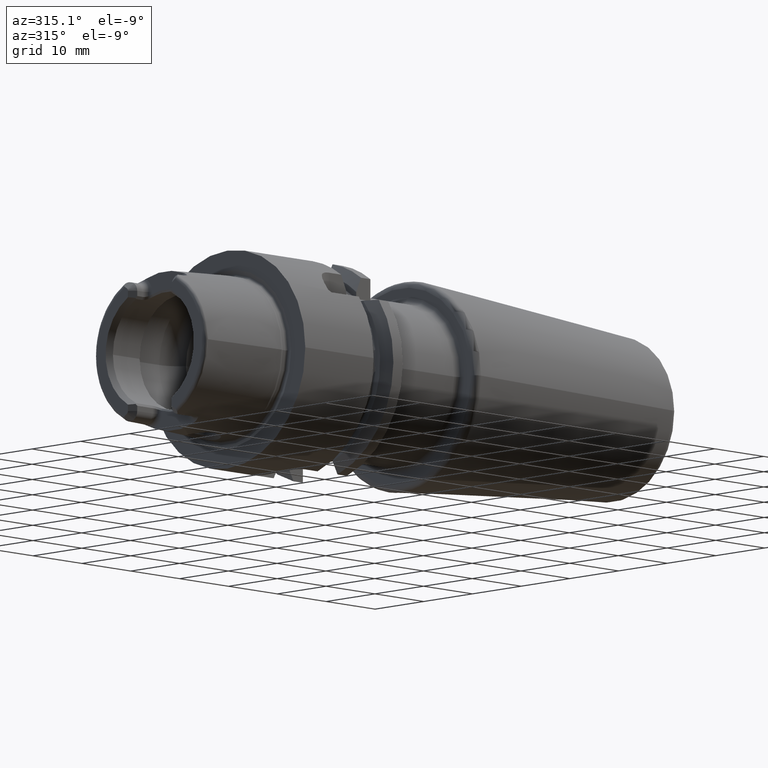
[diagram: clean part render]
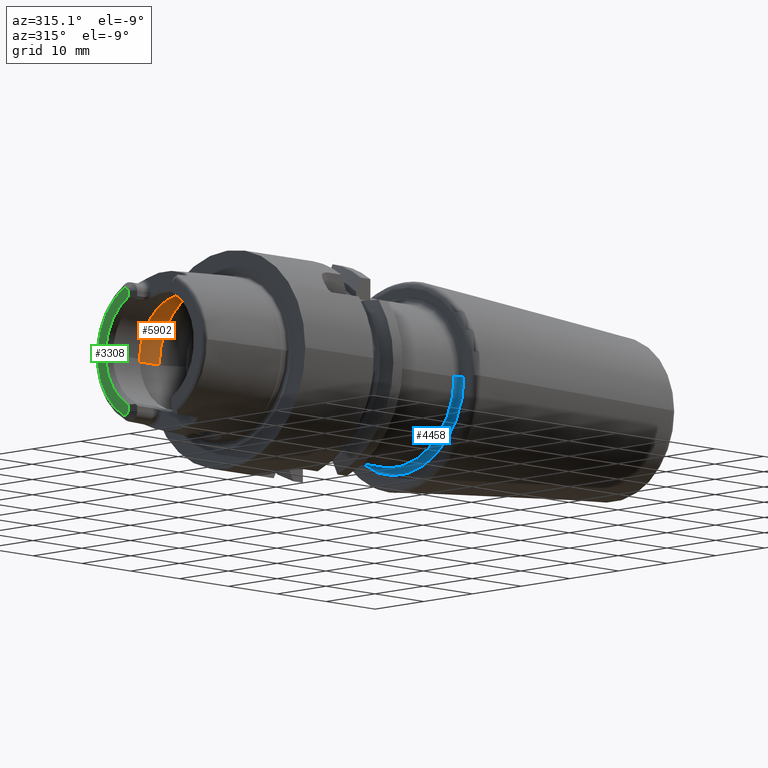
[diagram: same view with three faces highlighted in distinct colors, each labeled with its STEP entity id]
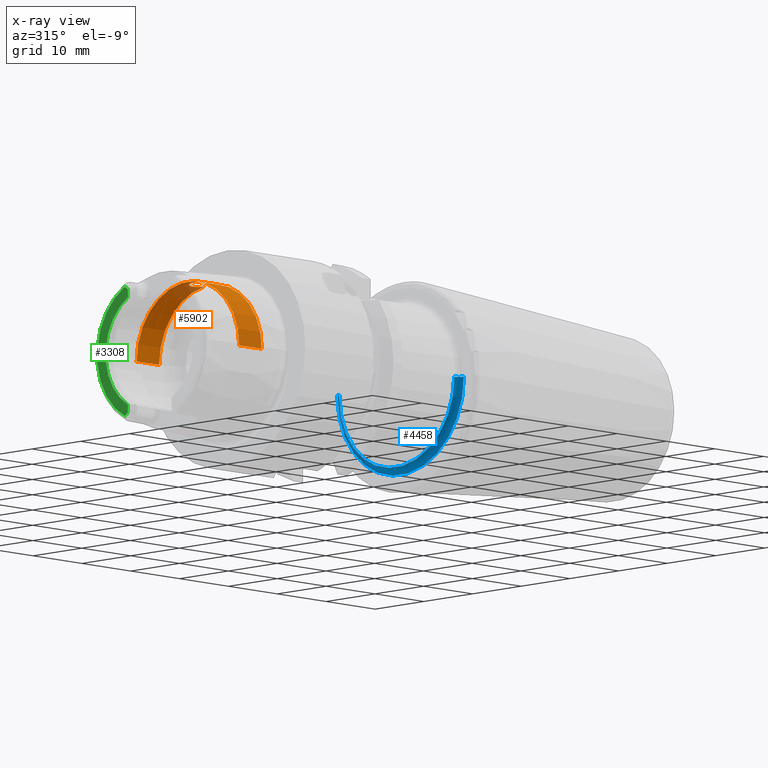
[diagram: x-ray of the same camera — body ghosted, the three highlighted faces saturated]
A machine part, auxiliary view with three faces highlighted in distinct colors.
The next image is the same camera in x-ray (body ghosted, the three faces saturated) — at least one of them is partly hidden behind the body in this view.
Their STEP definitions:

[orange] entity #5902 — the highlighted cylindrical surface (partial cylindrical patch) has radius 10.5325 mm, axis along (1, 0, 0).
#2120=CARTESIAN_POINT('',(-3.472718675620E0,1.291282988427E0,1.045304474753E1));
#2122=CARTESIAN_POINT('',(-3.472718675620E0,-1.291282988427E0,
1.045304474753E1));
#2139=CARTESIAN_POINT('',(-3.472718675620E0,1.291282988427E0,1.045304474753E1));
#2140=CARTESIAN_POINT('',(-3.551820426408E0,1.384841586957E0,1.044148728943E1));
#2141=CARTESIAN_POINT('',(-3.724942571461E0,1.555943571058E0,1.041785168933E1));
#2142=CARTESIAN_POINT('',(-4.042511427872E0,1.769650943472E0,1.038331529884E1));
#2143=CARTESIAN_POINT('',(-4.389850965242E0,1.917084641670E0,1.035676051362E1));
#2144=CARTESIAN_POINT('',(-4.761056854322E0,1.997570308614E0,1.034136021452E1));
#2145=CARTESIAN_POINT('',(-5.136557126525E0,2.007201558407E0,1.033947043825E1));
#2146=CARTESIAN_POINT('',(-5.512049194834E0,1.945619568956E0,1.035137716004E1));
#2147=CARTESIAN_POINT('',(-5.865060775888E0,1.816294076086E0,1.037514161203E1));
#2148=CARTESIAN_POINT('',(-6.190049879546E0,1.622034931154E0,1.040765646894E1));
#2149=CARTESIAN_POINT('',(-6.470376855189E0,1.372959104722E0,1.044386094628E1));
#2150=CARTESIAN_POINT('',(-6.701100529840E0,1.073953427955E0,1.047922934199E1));
#2151=CARTESIAN_POINT('',(-6.871231737901E0,7.389152706560E-1,
1.050852706109E1));
#2152=CARTESIAN_POINT('',(-6.976548138496E0,3.745773028060E-1,
1.052800693825E1));
#2153=CARTESIAN_POINT('',(-7.E0,1.264619597822E-1,1.05325E1));
#2154=CARTESIAN_POINT('',(-7.E0,0.E0,1.05325E1));
#2156=CARTESIAN_POINT('',(-3.472718675620E0,0.E0,0.E0));
#2157=DIRECTION('',(1.E0,0.E0,0.E0));
#2158=DIRECTION('',(0.E0,1.E0,0.E0));
#2159=AXIS2_PLACEMENT_3D('',#2156,#2157,#2158);
#2161=CARTESIAN_POINT('',(-3.472718675620E0,0.E0,0.E0));
#2162=DIRECTION('',(1.E0,0.E0,0.E0));
#2163=DIRECTION('',(0.E0,-1.225998564848E-1,9.924561830075E-1));
#2164=AXIS2_PLACEMENT_3D('',#2161,#2162,#2163);
#2166=CARTESIAN_POINT('',(-7.E0,0.E0,1.05325E1));
#2167=CARTESIAN_POINT('',(-7.E0,-1.263828513715E-1,1.05325E1));
#2168=CARTESIAN_POINT('',(-6.976567670638E0,-3.743664299160E-1,
1.052801102568E1));
#2169=CARTESIAN_POINT('',(-6.871415942195E0,-7.384420965487E-1,
1.050855990199E1));
#2170=CARTESIAN_POINT('',(-6.701318023017E0,-1.073587960229E0,
1.047926633415E1));
#2171=CARTESIAN_POINT('',(-6.470880104140E0,-1.372427438603E0,
1.044393149696E1));
#2172=CARTESIAN_POINT('',(-6.190302106872E0,-1.621866204916E0,
1.040768489987E1));
#2173=CARTESIAN_POINT('',(-5.865356293532E0,-1.816174967303E0,
1.037516275477E1));
#2174=CARTESIAN_POINT('',(-5.511785149440E0,-1.945706973606E0,
1.035136120220E1));
#2175=CARTESIAN_POINT('',(-5.136360219877E0,-2.007222636497E0,
1.033946612188E1));
#2176=CARTESIAN_POINT('',(-4.760420701046E0,-1.997513982763E0,
1.034137117427E1));
#2177=CARTESIAN_POINT('',(-4.389238978270E0,-1.916886075392E0,
1.035679831737E1));
#2178=CARTESIAN_POINT('',(-4.042195159331E0,-1.769419505555E0,
1.038335220146E1));
#2179=CARTESIAN_POINT('',(-3.725469932826E0,-1.556336729189E0,
1.041779009016E1));
#2180=CARTESIAN_POINT('',(-3.552011347422E0,-1.385067401207E0,
1.044145939419E1));
#2181=CARTESIAN_POINT('',(-3.472718675620E0,-1.291282988427E0,
1.045304474753E1));
#2222=DIRECTION('',(-1.E0,0.E0,0.E0));
#2223=VECTOR('',#2222,4.620227063766E0);
#2224=CARTESIAN_POINT('',(-3.472718675620E0,-1.05325E1,0.E0));
#2225=LINE('',#2224,#2223);
#2226=DIRECTION('',(-1.E0,0.E0,0.E0));
#2227=VECTOR('',#2226,4.620227063766E0);
#2228=CARTESIAN_POINT('',(-3.472718675620E0,1.05325E1,0.E0));
#2229=LINE('',#2228,#2227);
#2481=CARTESIAN_POINT('',(-8.092945739386E0,0.E0,0.E0));
#2482=DIRECTION('',(1.E0,0.E0,0.E0));
#2483=DIRECTION('',(0.E0,1.E0,0.E0));
#2484=AXIS2_PLACEMENT_3D('',#2481,#2482,#2483);
#3058=CARTESIAN_POINT('',(-7.E0,0.E0,1.05325E1));
#3059=VERTEX_POINT('',#3058);
#3084=CARTESIAN_POINT('',(-3.472718675620E0,1.05325E1,0.E0));
#3085=VERTEX_POINT('',#3084);
#3086=CARTESIAN_POINT('',(-8.092945739386E0,1.05325E1,0.E0));
#3087=VERTEX_POINT('',#3086);
#3096=CARTESIAN_POINT('',(-3.472718675620E0,-1.05325E1,0.E0));
#3097=VERTEX_POINT('',#3096);
#3098=CARTESIAN_POINT('',(-8.092945739386E0,-1.05325E1,0.E0));
#3099=VERTEX_POINT('',#3098);
#3114=VERTEX_POINT('',#2120);
#3115=VERTEX_POINT('',#2122);
#5885=CARTESIAN_POINT('',(-1.70925E1,0.E0,0.E0));
#5886=DIRECTION('',(1.E0,0.E0,0.E0));
#5887=DIRECTION('',(0.E0,-1.E0,0.E0));
#5888=AXIS2_PLACEMENT_3D('',#5885,#5886,#5887);
#5889=CYLINDRICAL_SURFACE('',#5888,1.05325E1);
#5890=ORIENTED_EDGE('',*,*,#5844,.F.);
#5891=ORIENTED_EDGE('',*,*,#5880,.F.);
#5893=ORIENTED_EDGE('',*,*,#5892,.T.);
#5895=ORIENTED_EDGE('',*,*,#5894,.T.);
#5897=ORIENTED_EDGE('',*,*,#5896,.F.);
#5898=ORIENTED_EDGE('',*,*,#5872,.F.);
#5899=ORIENTED_EDGE('',*,*,#5638,.F.);
#5900=EDGE_LOOP('',(#5890,#5891,#5893,#5895,#5897,#5898,#5899));
#5901=FACE_OUTER_BOUND('',#5900,.F.);
#5902=ADVANCED_FACE('',(#5901),#5889,.F.);
#2155=B_SPLINE_CURVE_WITH_KNOTS('',3,(#2139,#2140,#2141,#2142,#2143,#2144,#2145,
#2146,#2147,#2148,#2149,#2150,#2151,#2152,#2153,#2154),.UNSPECIFIED.,.F.,.F.,(4,
1,1,1,1,1,1,1,1,1,1,1,1,4),(0.E0,7.692307692308E-2,1.538461538462E-1,
2.307692307692E-1,3.076923076923E-1,3.846153846154E-1,4.615384615385E-1,
5.384615384615E-1,6.153846153846E-1,6.923076923077E-1,7.692307692308E-1,
8.461538461538E-1,9.230769230769E-1,1.E0),.UNSPECIFIED.);
#2160=CIRCLE('',#2159,1.05325E1);
#2165=CIRCLE('',#2164,1.05325E1);
#2182=B_SPLINE_CURVE_WITH_KNOTS('',3,(#2166,#2167,#2168,#2169,#2170,#2171,#2172,
#2173,#2174,#2175,#2176,#2177,#2178,#2179,#2180,#2181),.UNSPECIFIED.,.F.,.F.,(4,
1,1,1,1,1,1,1,1,1,1,1,1,4),(0.E0,7.692307692308E-2,1.538461538462E-1,
2.307692307692E-1,3.076923076923E-1,3.846153846154E-1,4.615384615385E-1,
5.384615384615E-1,6.153846153846E-1,6.923076923077E-1,7.692307692308E-1,
8.461538461538E-1,9.230769230769E-1,1.E0),.UNSPECIFIED.);
#2485=CIRCLE('',#2484,1.05325E1);
#5638=EDGE_CURVE('',#3059,#3115,#2182,.T.);
#5844=EDGE_CURVE('',#3114,#3059,#2155,.T.);
#5872=EDGE_CURVE('',#3115,#3097,#2165,.T.);
#5880=EDGE_CURVE('',#3085,#3114,#2160,.T.);
#5892=EDGE_CURVE('',#3085,#3087,#2229,.T.);
#5894=EDGE_CURVE('',#3087,#3099,#2485,.T.);
#5896=EDGE_CURVE('',#3097,#3099,#2225,.T.);

[blue] entity #4458 — the highlighted toroidal blend (fillet) surface has major radius 13 mm and minor (blend) radius 1 mm.
#1258=CARTESIAN_POINT('',(3.445E1,0.E0,0.E0));
#1259=DIRECTION('',(1.E0,0.E0,0.E0));
#1260=DIRECTION('',(0.E0,-1.E0,0.E0));
#1261=AXIS2_PLACEMENT_3D('',#1258,#1259,#1260);
#1267=CARTESIAN_POINT('',(3.445E1,-1.3E1,3.782613111625E-12));
#1268=DIRECTION('',(0.E0,-2.909695054343E-13,-1.E0));
#1269=DIRECTION('',(0.E0,1.E0,-2.909695054343E-13));
#1270=AXIS2_PLACEMENT_3D('',#1267,#1268,#1269);
#1272=CARTESIAN_POINT('',(3.445E1,1.3E1,-3.784264568374E-12));
#1273=DIRECTION('',(0.E0,2.910978749715E-13,1.E0));
#1274=DIRECTION('',(0.E0,-1.E0,2.910978749715E-13));
#1275=AXIS2_PLACEMENT_3D('',#1272,#1273,#1274);
#1277=CARTESIAN_POINT('',(3.545E1,0.E0,0.E0));
#1278=DIRECTION('',(1.E0,0.E0,0.E0));
#1279=DIRECTION('',(0.E0,-1.E0,0.E0));
#1280=AXIS2_PLACEMENT_3D('',#1277,#1278,#1279);
#3208=CARTESIAN_POINT('',(3.445E1,1.2E1,-1.487740894210E-13));
#3209=VERTEX_POINT('',#3208);
#3210=CARTESIAN_POINT('',(3.445E1,-1.2E1,1.483893481465E-13));
#3211=VERTEX_POINT('',#3210);
#3212=CARTESIAN_POINT('',(3.545E1,-1.3E1,0.E0));
#3213=CARTESIAN_POINT('',(3.545E1,1.3E1,0.E0));
#3214=VERTEX_POINT('',#3212);
#3215=VERTEX_POINT('',#3213);
#4444=CARTESIAN_POINT('',(3.445E1,0.E0,0.E0));
#4445=DIRECTION('',(1.E0,0.E0,0.E0));
#4446=DIRECTION('',(0.E0,-9.999774477568E-1,6.715949512969E-3));
#4447=AXIS2_PLACEMENT_3D('',#4444,#4445,#4446);
#4448=TOROIDAL_SURFACE('',#4447,1.3E1,1.E0);
#4449=ORIENTED_EDGE('',*,*,#4438,.F.);
#4451=ORIENTED_EDGE('',*,*,#4450,.T.);
#4453=ORIENTED_EDGE('',*,*,#4452,.T.);
#4455=ORIENTED_EDGE('',*,*,#4454,.F.);
#4456=EDGE_LOOP('',(#4449,#4451,#4453,#4455));
#4457=FACE_OUTER_BOUND('',#4456,.F.);
#4458=ADVANCED_FACE('',(#4457),#4448,.F.);
#1262=CIRCLE('',#1261,1.2E1);
#1271=CIRCLE('',#1270,1.E0);
#1276=CIRCLE('',#1275,1.E0);
#1281=CIRCLE('',#1280,1.3E1);
#4438=EDGE_CURVE('',#3211,#3209,#1262,.T.);
#4450=EDGE_CURVE('',#3211,#3214,#1271,.T.);
#4452=EDGE_CURVE('',#3214,#3215,#1281,.T.);
#4454=EDGE_CURVE('',#3209,#3215,#1276,.T.);

[green] entity #3308 — the highlighted planar face has unit normal (1, 0, 0).
#78=DIRECTION('',(0.E0,0.E0,1.E0));
#79=VECTOR('',#78,9.354316334249E-1);
#80=CARTESIAN_POINT('',(-1.59E1,4.475E0,-8.82E0));
#81=LINE('',#80,#79);
#82=CARTESIAN_POINT('',(-1.59E1,4.905E0,-8.82E0));
#83=DIRECTION('',(1.E0,0.E0,0.E0));
#84=DIRECTION('',(0.E0,-1.E0,0.E0));
#85=AXIS2_PLACEMENT_3D('',#82,#83,#84);
#87=DIRECTION('',(0.E0,-8.334669248958E-1,5.525693486837E-1));
#88=VECTOR('',#87,5.697743001300E-1);
#89=CARTESIAN_POINT('',(-1.59E1,5.142283213880E0,-9.493230591625E0));
#90=LINE('',#89,#88);
#91=DIRECTION('',(0.E0,-8.334669248958E-1,-5.525693486837E-1));
#92=VECTOR('',#91,5.697743001300E-1);
#93=CARTESIAN_POINT('',(-1.59E1,5.142283213880E0,9.493230591625E0));
#94=LINE('',#93,#92);
#95=CARTESIAN_POINT('',(-1.59E1,4.905E0,8.82E0));
#96=DIRECTION('',(-1.E0,0.E0,0.E0));
#97=DIRECTION('',(0.E0,-1.E0,-1.652424966884E-14));
#98=AXIS2_PLACEMENT_3D('',#95,#96,#97);
#100=DIRECTION('',(0.E0,0.E0,1.E0));
#101=VECTOR('',#100,9.354316334249E-1);
#102=CARTESIAN_POINT('',(-1.59E1,4.475E0,7.884568366575E0));
#103=LINE('',#102,#101);
#135=CARTESIAN_POINT('',(-1.59E1,0.E0,0.E0));
#136=DIRECTION('',(1.E0,0.E0,0.E0));
#137=DIRECTION('',(0.E0,4.936034096438E-1,-8.696871126952E-1));
#138=AXIS2_PLACEMENT_3D('',#135,#136,#137);
#322=CARTESIAN_POINT('',(-1.59E1,0.E0,0.E0));
#323=DIRECTION('',(-1.E0,0.E0,0.E0));
#324=DIRECTION('',(0.E0,4.762915015347E-1,8.792874419471E-1));
#325=AXIS2_PLACEMENT_3D('',#322,#323,#324);
#2808=CARTESIAN_POINT('',(-1.59E1,4.475E0,7.884568366575E0));
#2809=CARTESIAN_POINT('',(-1.59E1,4.475E0,8.82E0));
#2810=VERTEX_POINT('',#2808);
#2811=VERTEX_POINT('',#2809);
#2812=CARTESIAN_POINT('',(-1.59E1,4.667395180066E0,9.178390777705E0));
#2813=VERTEX_POINT('',#2812);
#2814=CARTESIAN_POINT('',(-1.59E1,5.142283213880E0,9.493230591625E0));
#2815=VERTEX_POINT('',#2814);
#2840=CARTESIAN_POINT('',(-1.59E1,4.475E0,-8.82E0));
#2841=CARTESIAN_POINT('',(-1.59E1,4.475E0,-7.884568366575E0));
#2842=VERTEX_POINT('',#2840);
#2843=VERTEX_POINT('',#2841);
#2844=CARTESIAN_POINT('',(-1.59E1,4.667395180066E0,-9.178390777705E0));
#2845=VERTEX_POINT('',#2844);
#2846=CARTESIAN_POINT('',(-1.59E1,5.142283213880E0,-9.493230591625E0));
#2847=VERTEX_POINT('',#2846);
#3285=CARTESIAN_POINT('',(-1.59E1,0.E0,0.E0));
#3286=DIRECTION('',(1.E0,0.E0,0.E0));
#3287=DIRECTION('',(0.E0,-1.E0,0.E0));
#3288=AXIS2_PLACEMENT_3D('',#3285,#3286,#3287);
#3289=PLANE('',#3288);
#3291=ORIENTED_EDGE('',*,*,#3290,.F.);
#3293=ORIENTED_EDGE('',*,*,#3292,.T.);
#3295=ORIENTED_EDGE('',*,*,#3294,.F.);
#3297=ORIENTED_EDGE('',*,*,#3296,.F.);
#3299=ORIENTED_EDGE('',*,*,#3298,.T.);
#3301=ORIENTED_EDGE('',*,*,#3300,.F.);
#3303=ORIENTED_EDGE('',*,*,#3302,.F.);
#3305=ORIENTED_EDGE('',*,*,#3304,.F.);
#3306=EDGE_LOOP('',(#3291,#3293,#3295,#3297,#3299,#3301,#3303,#3305));
#3307=FACE_OUTER_BOUND('',#3306,.F.);
#3308=ADVANCED_FACE('',(#3307),#3289,.F.);
#86=CIRCLE('',#85,4.3E-1);
#99=CIRCLE('',#98,4.3E-1);
#139=CIRCLE('',#138,9.065982755730E0);
#326=CIRCLE('',#325,1.079650423598E1);
#3290=EDGE_CURVE('',#2842,#2843,#81,.T.);
#3292=EDGE_CURVE('',#2842,#2845,#86,.T.);
#3294=EDGE_CURVE('',#2847,#2845,#90,.T.);
#3296=EDGE_CURVE('',#2815,#2847,#326,.T.);
#3298=EDGE_CURVE('',#2815,#2813,#94,.T.);
#3300=EDGE_CURVE('',#2811,#2813,#99,.T.);
#3302=EDGE_CURVE('',#2810,#2811,#103,.T.);
#3304=EDGE_CURVE('',#2843,#2810,#139,.T.);